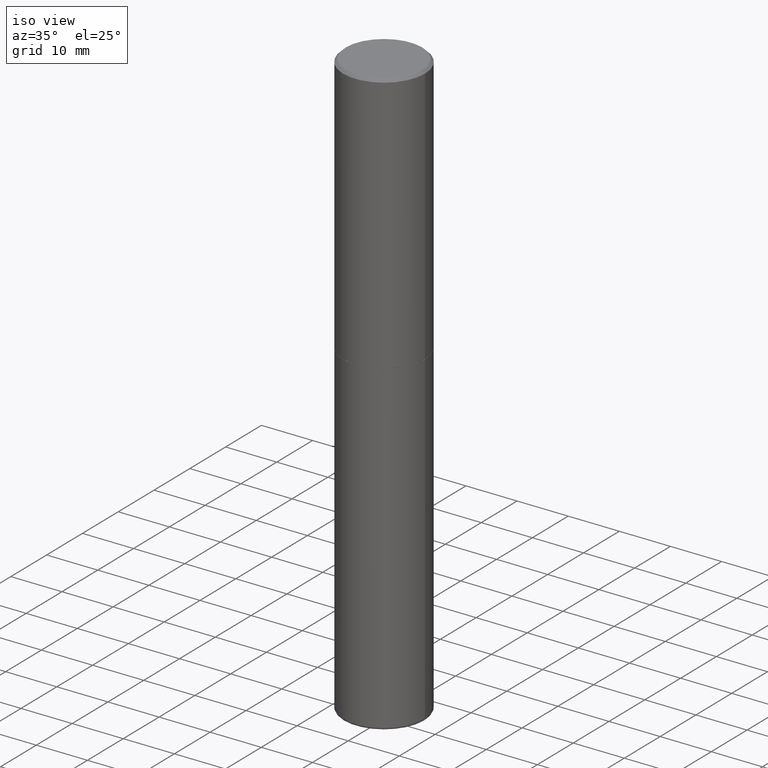
[diagram: clean part render]
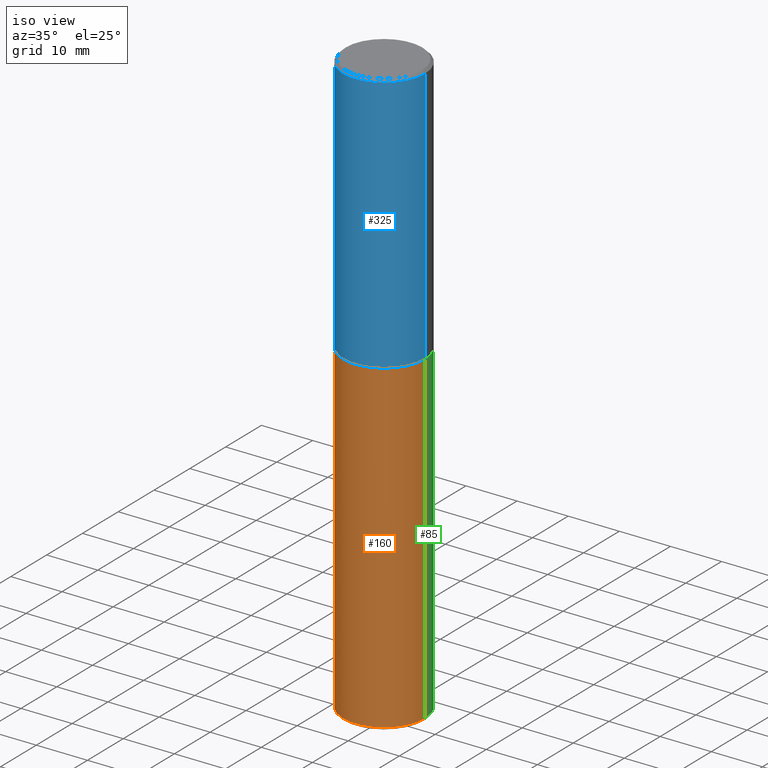
[diagram: same view with three faces highlighted in distinct colors, each labeled with its STEP entity id]
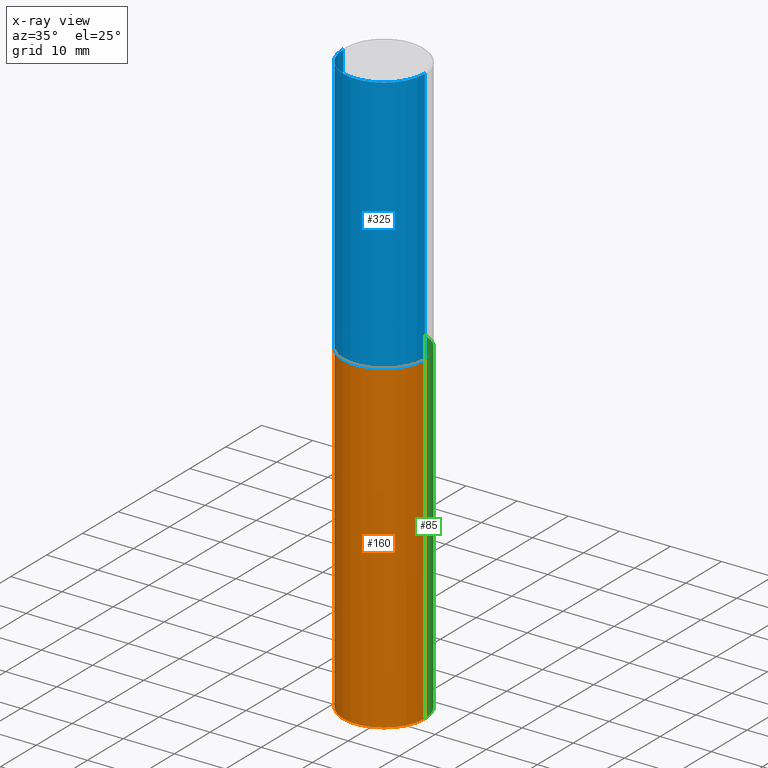
[diagram: x-ray of the same camera — body ghosted, the three highlighted faces saturated]
A machine part, iso view with three faces highlighted in distinct colors.
The next image is the same camera in x-ray (body ghosted, the three faces saturated) — at least one of them is partly hidden behind the body in this view.
Their STEP definitions:

[orange] entity #160 — the highlighted cylindrical surface (partial cylindrical patch) has radius 7.9997 mm, axis along (-0, 0, 1).
#7 = FACE_OUTER_BOUND ( 'NONE', #270, .T. ) ;
#10 = VERTEX_POINT ( 'NONE', #330 ) ;
#15 = ORIENTED_EDGE ( 'NONE', *, *, #386, .F. ) ;
#18 = DIRECTION ( 'NONE',  ( 1.000000000000000000, -6.982962677686269866E-15, 0.000000000000000000 ) ) ;
#36 = EDGE_CURVE ( 'NONE', #150, #412, #185, .T. ) ;
#53 = ORIENTED_EDGE ( 'NONE', *, *, #317, .T. ) ;
#65 = CYLINDRICAL_SURFACE ( 'NONE', #199, 0.3149500000000000077 ) ;
#74 = AXIS2_PLACEMENT_3D ( 'NONE', #99, #416, #18 ) ;
#89 = DIRECTION ( 'NONE',  ( -2.445468806185136877E-29, 3.491481338843145188E-15, 1.000000000000000000 ) ) ;
#96 = LINE ( 'NONE', #413, #123 ) ;
#99 = CARTESIAN_POINT ( 'NONE',  ( 1.102392883140197736E-28, -1.573924872737101586E-14, -4.507900000000000240 ) ) ;
#111 = ORIENTED_EDGE ( 'NONE', *, *, #293, .T. ) ;
#114 = VECTOR ( 'NONE', #200, 39.37007874015748143 ) ;
#123 = VECTOR ( 'NONE', #89, 39.37007874015748143 ) ;
#150 = VERTEX_POINT ( 'NONE', #357 ) ;
#158 = CARTESIAN_POINT ( 'NONE',  ( 0.3149500000000000077, -9.209829475600440793E-15, -2.007899999999999796 ) ) ;
#160 = ADVANCED_FACE ( 'NONE', ( #7 ), #65, .T. ) ;
#165 = CIRCLE ( 'NONE', #74, 0.3149500000000000077 ) ;
#181 = DIRECTION ( 'NONE',  ( 1.000000000000000000, -6.982962677686266711E-15, 4.876176775795936353E-29 ) ) ;
#185 = CIRCLE ( 'NONE', #402, 0.3149500000000000077 ) ;
#191 = CARTESIAN_POINT ( 'NONE',  ( 4.910256815939135870E-29, -7.010545380263151710E-15, -2.007899999999999796 ) ) ;
#199 = AXIS2_PLACEMENT_3D ( 'NONE', #415, #307, #181 ) ;
#200 = DIRECTION ( 'NONE',  ( -2.445468806185136877E-29, 3.491481338843145188E-15, 1.000000000000000000 ) ) ;
#248 = CARTESIAN_POINT ( 'NONE',  ( -0.3149500000000000077, 2.237854346276435590E-15, -1.549218606675782676E-29 ) ) ;
#250 = LINE ( 'NONE', #248, #114 ) ;
#255 = CARTESIAN_POINT ( 'NONE',  ( -0.3149499999999996747, -1.350139438109458461E-14, -4.507900000000000240 ) ) ;
#270 = EDGE_LOOP ( 'NONE', ( #15, #111, #53, #362 ) ) ;
#285 = DIRECTION ( 'NONE',  ( -2.445468806185136597E-29, 3.491481338843145583E-15, 1.000000000000000000 ) ) ;
#293 = EDGE_CURVE ( 'NONE', #408, #10, #165, .T. ) ;
#307 = DIRECTION ( 'NONE',  ( -2.445468806185136597E-29, 3.491481338843145583E-15, 1.000000000000000000 ) ) ;
#317 = EDGE_CURVE ( 'NONE', #10, #412, #96, .T. ) ;
#330 = CARTESIAN_POINT ( 'NONE',  ( 0.3149499999999996747, -1.793853282270830731E-14, -4.507900000000000240 ) ) ;
#357 = CARTESIAN_POINT ( 'NONE',  ( -0.3149500000000000077, -9.137042707540648986E-15, -2.007899999999999796 ) ) ;
#362 = ORIENTED_EDGE ( 'NONE', *, *, #36, .F. ) ;
#386 = EDGE_CURVE ( 'NONE', #408, #150, #250, .T. ) ;
#388 = DIRECTION ( 'NONE',  ( 1.000000000000000000, -6.982962677686263555E-15, 0.000000000000000000 ) ) ;
#402 = AXIS2_PLACEMENT_3D ( 'NONE', #191, #285, #388 ) ;
#408 = VERTEX_POINT ( 'NONE', #255 ) ;
#412 = VERTEX_POINT ( 'NONE', #158 ) ;
#413 = CARTESIAN_POINT ( 'NONE',  ( 0.3149500000000000077, -2.199284095337289871E-15, 1.535751875536930130E-29 ) ) ;
#415 = CARTESIAN_POINT ( 'NONE',  ( 0.000000000000000000, 0.000000000000000000, 0.000000000000000000 ) ) ;
#416 = DIRECTION ( 'NONE',  ( -2.445468806185136597E-29, 3.491481338843145583E-15, 1.000000000000000000 ) ) ;

[blue] entity #325 — the highlighted cylindrical surface (partial cylindrical patch) has radius 7.9997 mm, axis along (-0, 0, 1).
#4 = EDGE_CURVE ( 'NONE', #141, #298, #44, .T. ) ;
#12 = VERTEX_POINT ( 'NONE', #257 ) ;
#25 = DIRECTION ( 'NONE',  ( 1.000000000000000000, -6.982962677686265922E-15, 4.876176775795935232E-29 ) ) ;
#26 = CARTESIAN_POINT ( 'NONE',  ( -0.3149500000000001743, 2.237854346276436774E-15, -1.549218606675783237E-29 ) ) ;
#44 = CIRCLE ( 'NONE', #327, 0.3149500000000002853 ) ;
#50 = ORIENTED_EDGE ( 'NONE', *, *, #229, .F. ) ;
#58 = DIRECTION ( 'NONE',  ( -2.445468806185136597E-29, 3.491481338843145583E-15, 1.000000000000000000 ) ) ;
#60 = VERTEX_POINT ( 'NONE', #161 ) ;
#62 = CARTESIAN_POINT ( 'NONE',  ( 0.3149500000000002853, -9.206337994261599363E-15, -2.006899999999999906 ) ) ;
#63 = EDGE_LOOP ( 'NONE', ( #50, #303, #308, #400 ) ) ;
#67 = CYLINDRICAL_SURFACE ( 'NONE', #206, 0.3149500000000001743 ) ;
#112 = DIRECTION ( 'NONE',  ( -2.445468806185136597E-29, 3.491481338843145583E-15, 1.000000000000000000 ) ) ;
#141 = VERTEX_POINT ( 'NONE', #320 ) ;
#156 = DIRECTION ( 'NONE',  ( -2.445468806185136877E-29, 3.491481338843145188E-15, 1.000000000000000000 ) ) ;
#161 = CARTESIAN_POINT ( 'NONE',  ( 0.3149499999999999522, -2.230543471175006661E-15, -0.02000000000000006981 ) ) ;
#179 = CARTESIAN_POINT ( 'NONE',  ( 0.3149500000000001743, -2.199284095337290660E-15, 1.535751875536930690E-29 ) ) ;
#183 = LINE ( 'NONE', #26, #288 ) ;
#189 = CARTESIAN_POINT ( 'NONE',  ( 4.890937612370289799E-31, -6.982962677686315028E-17, -0.02000000000000006981 ) ) ;
#206 = AXIS2_PLACEMENT_3D ( 'NONE', #211, #58, #25 ) ;
#211 = CARTESIAN_POINT ( 'NONE',  ( 0.000000000000000000, 0.000000000000000000, 0.000000000000000000 ) ) ;
#213 = AXIS2_PLACEMENT_3D ( 'NONE', #189, #379, #344 ) ;
#229 = EDGE_CURVE ( 'NONE', #141, #12, #183, .T. ) ;
#254 = EDGE_CURVE ( 'NONE', #298, #60, #348, .T. ) ;
#257 = CARTESIAN_POINT ( 'NONE',  ( -0.3149499999999999522, 2.129454468560426178E-15, -0.02000000000000006981 ) ) ;
#260 = EDGE_CURVE ( 'NONE', #12, #60, #323, .T. ) ;
#266 = CARTESIAN_POINT ( 'NONE',  ( 4.907811347132950267E-29, -7.007053898924307914E-15, -2.006899999999999906 ) ) ;
#277 = DIRECTION ( 'NONE',  ( -2.445468806185136877E-29, 3.491481338843145188E-15, 1.000000000000000000 ) ) ;
#288 = VECTOR ( 'NONE', #156, 39.37007874015748143 ) ;
#298 = VERTEX_POINT ( 'NONE', #62 ) ;
#302 = VECTOR ( 'NONE', #277, 39.37007874015748143 ) ;
#303 = ORIENTED_EDGE ( 'NONE', *, *, #4, .T. ) ;
#308 = ORIENTED_EDGE ( 'NONE', *, *, #254, .T. ) ;
#320 = CARTESIAN_POINT ( 'NONE',  ( -0.3149500000000002853, -1.300587416574145677E-15, -2.006899999999999906 ) ) ;
#323 = CIRCLE ( 'NONE', #213, 0.3149499999999999522 ) ;
#325 = ADVANCED_FACE ( 'NONE', ( #340 ), #67, .T. ) ;
#327 = AXIS2_PLACEMENT_3D ( 'NONE', #266, #112, #361 ) ;
#340 = FACE_OUTER_BOUND ( 'NONE', #63, .T. ) ;
#344 = DIRECTION ( 'NONE',  ( 1.000000000000000000, -6.982962677686266711E-15, 0.000000000000000000 ) ) ;
#348 = LINE ( 'NONE', #179, #302 ) ;
#361 = DIRECTION ( 'NONE',  ( 1.000000000000000000, -6.982962677686267499E-15, 0.000000000000000000 ) ) ;
#379 = DIRECTION ( 'NONE',  ( -2.445468806185136597E-29, 3.491481338843145583E-15, 1.000000000000000000 ) ) ;
#400 = ORIENTED_EDGE ( 'NONE', *, *, #260, .F. ) ;

[green] entity #85 — the highlighted cylindrical surface (partial cylindrical patch) has radius 7.9997 mm, axis along (-0, 0, 1).
#3 = FACE_OUTER_BOUND ( 'NONE', #375, .T. ) ;
#10 = VERTEX_POINT ( 'NONE', #330 ) ;
#17 = ORIENTED_EDGE ( 'NONE', *, *, #329, .F. ) ;
#75 = CYLINDRICAL_SURFACE ( 'NONE', #389, 0.3149500000000000077 ) ;
#85 = ADVANCED_FACE ( 'NONE', ( #3 ), #75, .T. ) ;
#89 = DIRECTION ( 'NONE',  ( -2.445468806185136877E-29, 3.491481338843145188E-15, 1.000000000000000000 ) ) ;
#91 = CIRCLE ( 'NONE', #360, 0.3149500000000000077 ) ;
#96 = LINE ( 'NONE', #413, #123 ) ;
#114 = VECTOR ( 'NONE', #200, 39.37007874015748143 ) ;
#122 = CIRCLE ( 'NONE', #253, 0.3149500000000000077 ) ;
#123 = VECTOR ( 'NONE', #89, 39.37007874015748143 ) ;
#126 = DIRECTION ( 'NONE',  ( 1.000000000000000000, -6.982962677686266711E-15, 4.876176775795936353E-29 ) ) ;
#129 = DIRECTION ( 'NONE',  ( -2.445468806185136597E-29, 3.491481338843145583E-15, 1.000000000000000000 ) ) ;
#139 = ORIENTED_EDGE ( 'NONE', *, *, #386, .T. ) ;
#150 = VERTEX_POINT ( 'NONE', #357 ) ;
#158 = CARTESIAN_POINT ( 'NONE',  ( 0.3149500000000000077, -9.209829475600440793E-15, -2.007899999999999796 ) ) ;
#169 = ORIENTED_EDGE ( 'NONE', *, *, #317, .F. ) ;
#184 = EDGE_CURVE ( 'NONE', #10, #408, #122, .T. ) ;
#200 = DIRECTION ( 'NONE',  ( -2.445468806185136877E-29, 3.491481338843145188E-15, 1.000000000000000000 ) ) ;
#227 = DIRECTION ( 'NONE',  ( -2.445468806185136597E-29, 3.491481338843145583E-15, 1.000000000000000000 ) ) ;
#238 = ORIENTED_EDGE ( 'NONE', *, *, #184, .T. ) ;
#246 = DIRECTION ( 'NONE',  ( -2.445468806185136597E-29, 3.491481338843145583E-15, 1.000000000000000000 ) ) ;
#248 = CARTESIAN_POINT ( 'NONE',  ( -0.3149500000000000077, 2.237854346276435590E-15, -1.549218606675782676E-29 ) ) ;
#250 = LINE ( 'NONE', #248, #114 ) ;
#253 = AXIS2_PLACEMENT_3D ( 'NONE', #279, #246, #378 ) ;
#255 = CARTESIAN_POINT ( 'NONE',  ( -0.3149499999999996747, -1.350139438109458461E-14, -4.507900000000000240 ) ) ;
#279 = CARTESIAN_POINT ( 'NONE',  ( 1.102392883140197736E-28, -1.573924872737101586E-14, -4.507900000000000240 ) ) ;
#286 = DIRECTION ( 'NONE',  ( 1.000000000000000000, -6.982962677686263555E-15, 0.000000000000000000 ) ) ;
#317 = EDGE_CURVE ( 'NONE', #10, #412, #96, .T. ) ;
#329 = EDGE_CURVE ( 'NONE', #412, #150, #91, .T. ) ;
#330 = CARTESIAN_POINT ( 'NONE',  ( 0.3149499999999996747, -1.793853282270830731E-14, -4.507900000000000240 ) ) ;
#337 = CARTESIAN_POINT ( 'NONE',  ( 4.910256815939135870E-29, -7.010545380263151710E-15, -2.007899999999999796 ) ) ;
#356 = CARTESIAN_POINT ( 'NONE',  ( 0.000000000000000000, 0.000000000000000000, 0.000000000000000000 ) ) ;
#357 = CARTESIAN_POINT ( 'NONE',  ( -0.3149500000000000077, -9.137042707540648986E-15, -2.007899999999999796 ) ) ;
#360 = AXIS2_PLACEMENT_3D ( 'NONE', #337, #227, #286 ) ;
#375 = EDGE_LOOP ( 'NONE', ( #238, #139, #17, #169 ) ) ;
#378 = DIRECTION ( 'NONE',  ( 1.000000000000000000, -6.982962677686269866E-15, 0.000000000000000000 ) ) ;
#386 = EDGE_CURVE ( 'NONE', #408, #150, #250, .T. ) ;
#389 = AXIS2_PLACEMENT_3D ( 'NONE', #356, #129, #126 ) ;
#408 = VERTEX_POINT ( 'NONE', #255 ) ;
#412 = VERTEX_POINT ( 'NONE', #158 ) ;
#413 = CARTESIAN_POINT ( 'NONE',  ( 0.3149500000000000077, -2.199284095337289871E-15, 1.535751875536930130E-29 ) ) ;